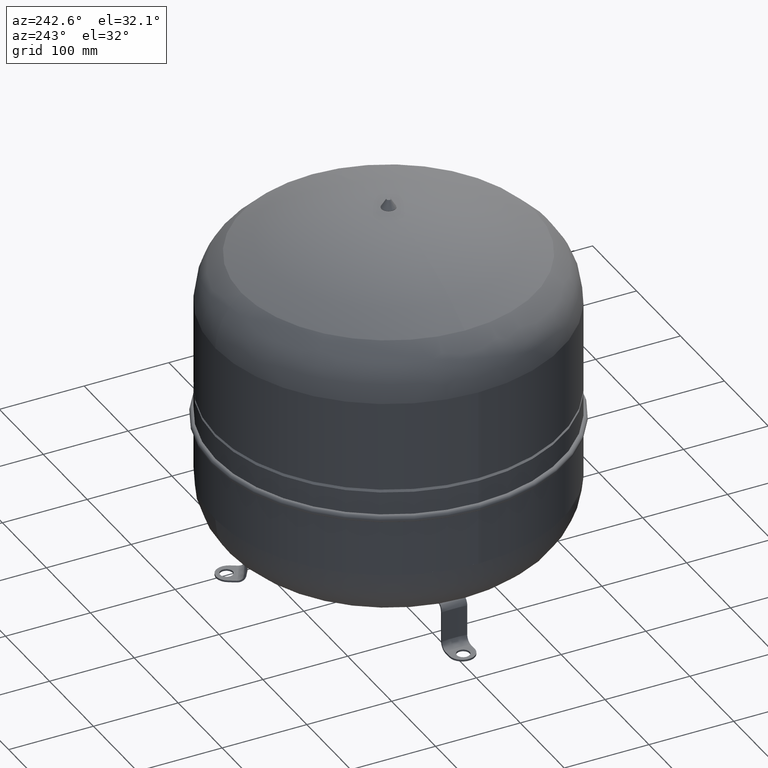
[diagram: clean part render]
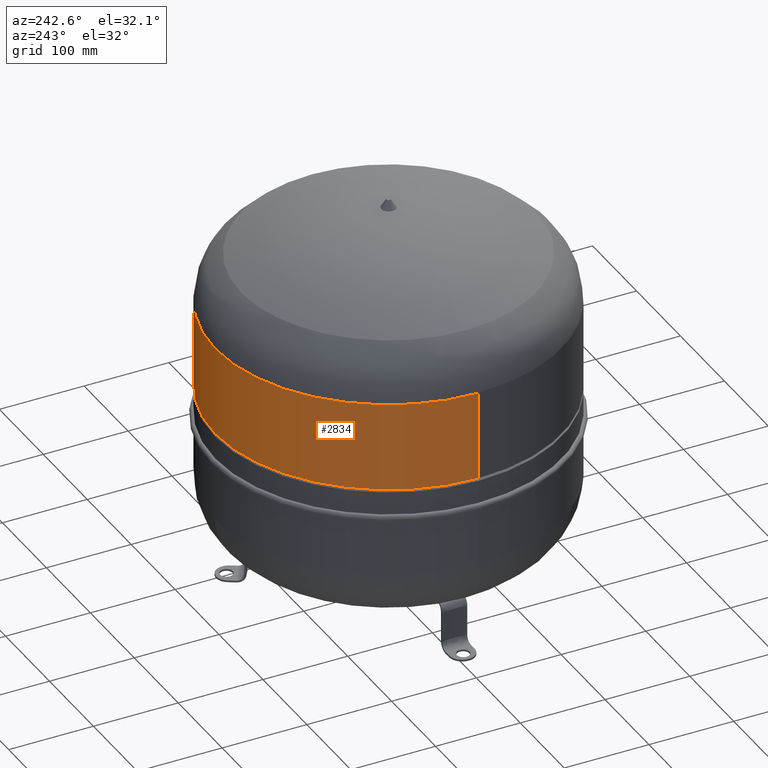
[diagram: same view with one face highlighted and labeled with its STEP entity id]
A machine part, auxiliary view. The second image highlights one B-rep face of the part: STEP entity #2834.
In plain terms, the highlighted cylindrical surface (partial cylindrical patch) has radius 204.5 mm, axis along (0, 0, 1).
Its self-contained STEP definition (entity closure, byte-faithful):
#2532=CARTESIAN_POINT('',(204.50000000000003,0.0,343.0));
#2533=VERTEX_POINT('',#2532);
#2534=CARTESIAN_POINT('',(204.5,0.0,238.00000000000006));
#2535=VERTEX_POINT('',#2534);
#2536=CARTESIAN_POINT('',(204.50000000000003,0.0,343.0));
#2537=DIRECTION('',(0.0,0.0,-1.0));
#2538=VECTOR('',#2537,104.99999999999994);
#2539=LINE('',#2536,#2538);
#2540=EDGE_CURVE('',#2533,#2535,#2539,.T.);
#2542=CARTESIAN_POINT('',(-204.50000000000003,-2.504320E-014,343.00000000000006));
#2543=VERTEX_POINT('',#2542);
#2551=CARTESIAN_POINT('',(-204.50000000000003,-2.504320E-014,238.00000000000011));
#2552=VERTEX_POINT('',#2551);
#2553=CARTESIAN_POINT('',(-204.50000000000003,-2.504320E-014,343.00000000000006));
#2554=DIRECTION('',(0.0,0.0,-1.0));
#2555=VECTOR('',#2554,104.99999999999994);
#2556=LINE('',#2553,#2555);
#2557=EDGE_CURVE('',#2543,#2552,#2556,.T.);
#2802=CARTESIAN_POINT('',(1.380507E-029,0.0,238.00000000000009));
#2803=DIRECTION('',(0.0,0.0,1.0));
#2804=DIRECTION('',(1.0,0.0,0.0));
#2805=AXIS2_PLACEMENT_3D('',#2802,#2803,#2804);
#2806=CIRCLE('',#2805,204.5);
#2807=EDGE_CURVE('',#2535,#2552,#2806,.T.);
#2817=CARTESIAN_POINT('',(8.343982E-015,0.0,290.50000000000006));
#2818=DIRECTION('',(1.589330E-016,0.0,1.0));
#2819=DIRECTION('',(1.0,0.0,0.0));
#2820=AXIS2_PLACEMENT_3D('',#2817,#2818,#2819);
#2821=CYLINDRICAL_SURFACE('',#2820,204.50000000000003);
#2822=ORIENTED_EDGE('',*,*,#2540,.T.);
#2823=ORIENTED_EDGE('',*,*,#2807,.T.);
#2824=ORIENTED_EDGE('',*,*,#2557,.F.);
#2825=CARTESIAN_POINT('',(1.668796E-014,0.0,343.0));
#2826=DIRECTION('',(0.0,0.0,1.0));
#2827=DIRECTION('',(1.0,0.0,0.0));
#2828=AXIS2_PLACEMENT_3D('',#2825,#2826,#2827);
#2829=CIRCLE('',#2828,204.50000000000003);
#2830=EDGE_CURVE('',#2533,#2543,#2829,.T.);
#2831=ORIENTED_EDGE('',*,*,#2830,.F.);
#2832=EDGE_LOOP('',(#2822,#2823,#2824,#2831));
#2833=FACE_OUTER_BOUND('',#2832,.T.);
#2834=ADVANCED_FACE('',(#2833),#2821,.T.);